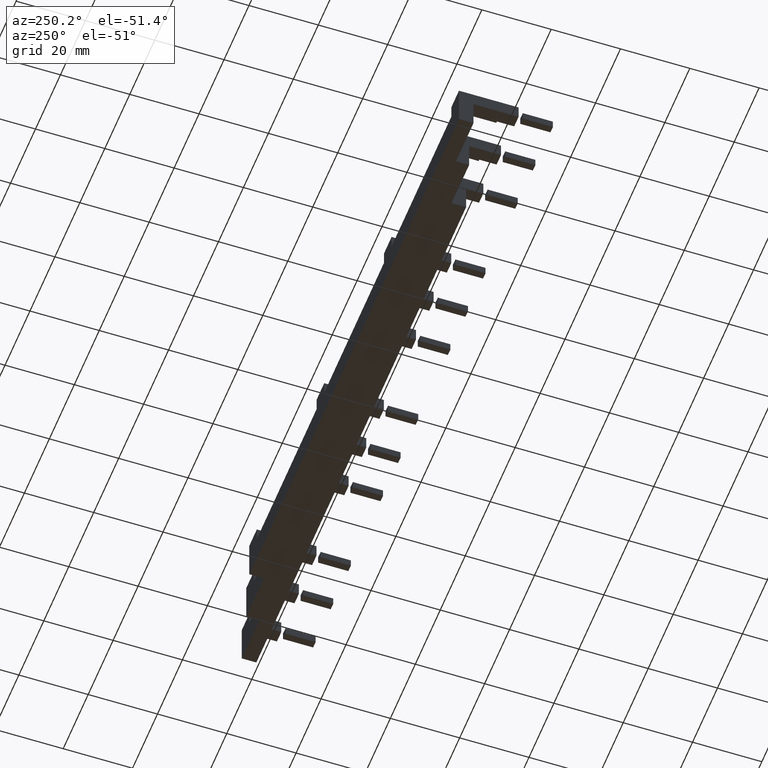
[diagram: clean part render]
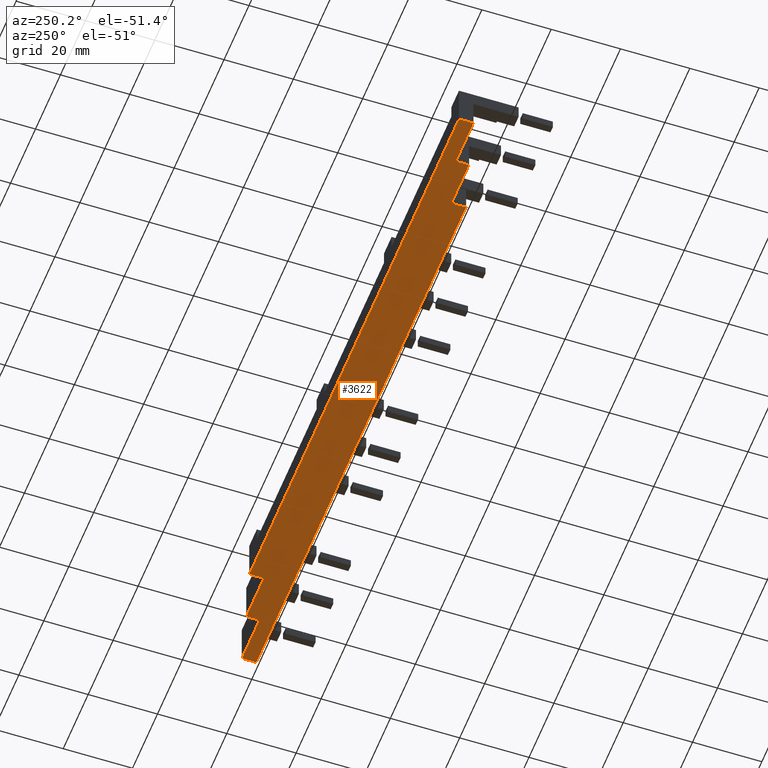
[diagram: same view with one face highlighted and labeled with its STEP entity id]
A machine part, auxiliary view. The second image highlights one B-rep face of the part: STEP entity #3622.
In plain terms, the highlighted planar face has unit normal (0, 0, 1).
Its self-contained STEP definition (entity closure, byte-faithful):
#3302=CARTESIAN_POINT('',(196.29999999999964,4.199999999992145,87.79999999999994));
#3303=VERTEX_POINT('',#3302);
#3310=CARTESIAN_POINT('',(182.19999999999968,4.199999999992145,87.79999999999994));
#3311=VERTEX_POINT('',#3310);
#3312=CARTESIAN_POINT('',(182.1999999999997,4.199999999992144,87.79999999999994));
#3313=DIRECTION('',(1.0,0.0,0.0));
#3314=VECTOR('',#3313,14.099999999999937);
#3315=LINE('',#3312,#3314);
#3316=EDGE_CURVE('',#3311,#3303,#3315,.T.);
#3335=CARTESIAN_POINT('',(196.29999999999964,0.0,87.79999999999994));
#3336=VERTEX_POINT('',#3335);
#3343=CARTESIAN_POINT('',(196.29999999999964,4.199999999992131,87.79999999999994));
#3344=DIRECTION('',(0.0,-1.0,0.0));
#3345=VECTOR('',#3344,4.199999999992117);
#3346=LINE('',#3343,#3345);
#3347=EDGE_CURVE('',#3303,#3336,#3346,.T.);
#3360=CARTESIAN_POINT('',(182.19999999999973,7.99999999999102,87.79999999999994));
#3361=VERTEX_POINT('',#3360);
#3362=CARTESIAN_POINT('',(182.19999999999973,7.999999999991021,87.79999999999994));
#3363=DIRECTION('',(0.0,-1.0,0.0));
#3364=VECTOR('',#3363,3.799999999998904);
#3365=LINE('',#3362,#3364);
#3366=EDGE_CURVE('',#3361,#3311,#3365,.T.);
#3385=CARTESIAN_POINT('',(168.0999999999996,7.99999999999102,87.799999999999955));
#3386=VERTEX_POINT('',#3385);
#3387=CARTESIAN_POINT('',(168.09999999999962,7.999999999991019,87.79999999999994));
#3388=DIRECTION('',(1.0,0.0,0.0));
#3389=VECTOR('',#3388,14.100000000000136);
#3390=LINE('',#3387,#3389);
#3391=EDGE_CURVE('',#3386,#3361,#3390,.T.);
#3411=CARTESIAN_POINT('',(168.0999999999996,12.200000000000049,87.79999999999994));
#3412=VERTEX_POINT('',#3411);
#3413=CARTESIAN_POINT('',(168.0999999999996,12.200000000000035,87.799999999999955));
#3414=DIRECTION('',(0.0,-1.0,0.0));
#3415=VECTOR('',#3414,4.200000000009014);
#3416=LINE('',#3413,#3415);
#3417=EDGE_CURVE('',#3412,#3386,#3416,.T.);
#3436=CARTESIAN_POINT('',(28.19999999999958,4.199999999992799,87.799999999999983));
#3437=VERTEX_POINT('',#3436);
#3444=CARTESIAN_POINT('',(28.199999999999594,0.0,87.799999999999983));
#3445=VERTEX_POINT('',#3444);
#3446=CARTESIAN_POINT('',(28.19999999999958,0.0,87.799999999999983));
#3447=DIRECTION('',(0.0,1.0,0.0));
#3448=VECTOR('',#3447,4.199999999992786);
#3449=LINE('',#3446,#3448);
#3450=EDGE_CURVE('',#3445,#3437,#3449,.T.);
#3471=CARTESIAN_POINT('',(196.29999999999964,1.191987E-015,87.79999999999994));
#3472=DIRECTION('',(-1.0,0.0,0.0));
#3473=VECTOR('',#3472,168.10000000000005);
#3474=LINE('',#3471,#3473);
#3475=EDGE_CURVE('',#3336,#3445,#3474,.T.);
#3534=CARTESIAN_POINT('',(14.099999999999667,7.999999999992271,87.799999999999983));
#3535=VERTEX_POINT('',#3534);
#3542=CARTESIAN_POINT('',(14.099999999999682,4.199999999992799,87.799999999999983));
#3543=VERTEX_POINT('',#3542);
#3544=CARTESIAN_POINT('',(14.099999999999667,4.199999999992785,87.799999999999983));
#3545=DIRECTION('',(0.0,1.0,0.0));
#3546=VECTOR('',#3545,3.799999999999487);
#3547=LINE('',#3544,#3546);
#3548=EDGE_CURVE('',#3543,#3535,#3547,.T.);
#3569=CARTESIAN_POINT('',(28.199999999999584,4.1999999999928,87.799999999999983));
#3570=DIRECTION('',(-1.0,0.0,0.0));
#3571=VECTOR('',#3570,14.099999999999914);
#3572=LINE('',#3569,#3571);
#3573=EDGE_CURVE('',#3437,#3543,#3572,.T.);
#3584=CARTESIAN_POINT('',(7.049999999999825,10.099999999996159,87.799999999999983));
#3585=DIRECTION('',(0.0,0.0,1.0));
#3586=DIRECTION('',(1.0,0.0,0.0));
#3587=AXIS2_PLACEMENT_3D('',#3584,#3585,#3586);
#3588=PLANE('',#3587);
#3589=CARTESIAN_POINT('',(-1.986645E-015,7.999999999992271,87.799999999999997));
#3590=VERTEX_POINT('',#3589);
#3591=CARTESIAN_POINT('',(14.099999999999669,7.999999999992272,87.799999999999983));
#3592=DIRECTION('',(-1.0,0.0,0.0));
#3593=VECTOR('',#3592,14.099999999999685);
#3594=LINE('',#3591,#3593);
#3595=EDGE_CURVE('',#3535,#3590,#3594,.T.);
#3596=ORIENTED_EDGE('',*,*,#3595,.T.);
#3597=CARTESIAN_POINT('',(-1.690762E-014,12.200000000000049,87.799999999999983));
#3598=VERTEX_POINT('',#3597);
#3599=CARTESIAN_POINT('',(-1.619750E-014,7.999999999992271,87.799999999999983));
#3600=DIRECTION('',(0.0,1.0,0.0));
#3601=VECTOR('',#3600,4.200000000007776);
#3602=LINE('',#3599,#3601);
#3603=EDGE_CURVE('',#3590,#3598,#3602,.T.);
#3604=ORIENTED_EDGE('',*,*,#3603,.T.);
#3605=CARTESIAN_POINT('',(-2.842171E-014,12.200000000000045,87.799999999999969));
#3606=DIRECTION('',(1.0,0.0,0.0));
#3607=VECTOR('',#3606,168.0999999999996);
#3608=LINE('',#3605,#3607);
#3609=EDGE_CURVE('',#3598,#3412,#3608,.T.);
#3610=ORIENTED_EDGE('',*,*,#3609,.T.);
#3611=ORIENTED_EDGE('',*,*,#3417,.T.);
#3612=ORIENTED_EDGE('',*,*,#3391,.T.);
#3613=ORIENTED_EDGE('',*,*,#3366,.T.);
#3614=ORIENTED_EDGE('',*,*,#3316,.T.);
#3615=ORIENTED_EDGE('',*,*,#3347,.T.);
#3616=ORIENTED_EDGE('',*,*,#3475,.T.);
#3617=ORIENTED_EDGE('',*,*,#3450,.T.);
#3618=ORIENTED_EDGE('',*,*,#3573,.T.);
#3619=ORIENTED_EDGE('',*,*,#3548,.T.);
#3620=EDGE_LOOP('',(#3596,#3604,#3610,#3611,#3612,#3613,#3614,#3615,#3616,#3617,#3618,#3619));
#3621=FACE_OUTER_BOUND('',#3620,.T.);
#3622=ADVANCED_FACE('',(#3621),#3588,.F.);